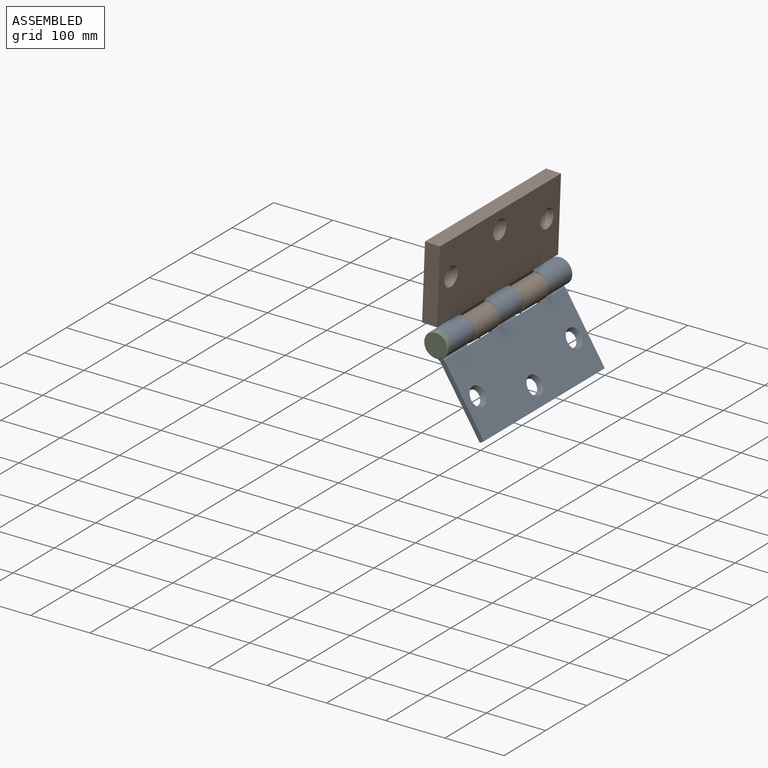
[diagram: assembled view]
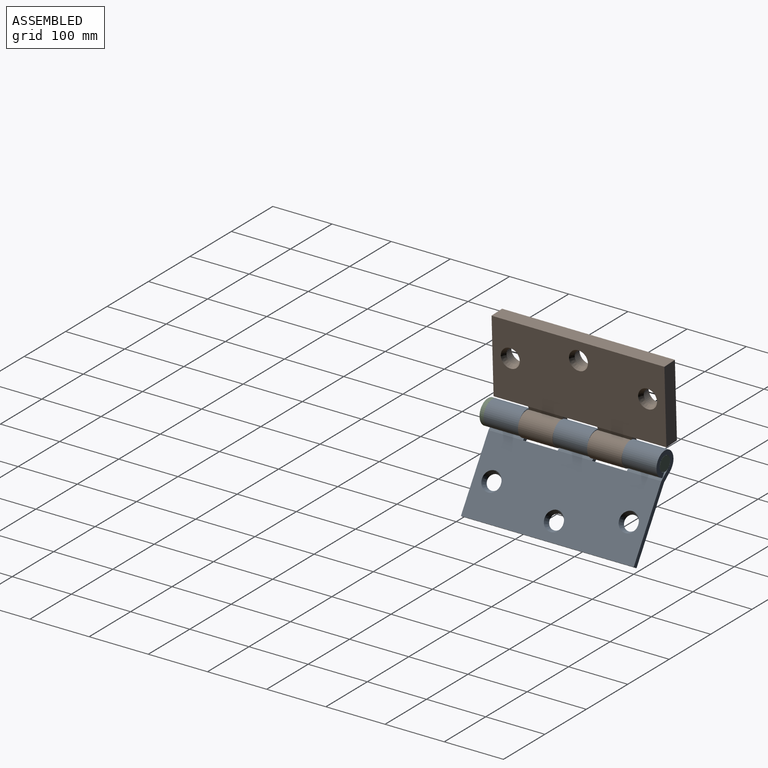
[diagram: assembled view, second angle]
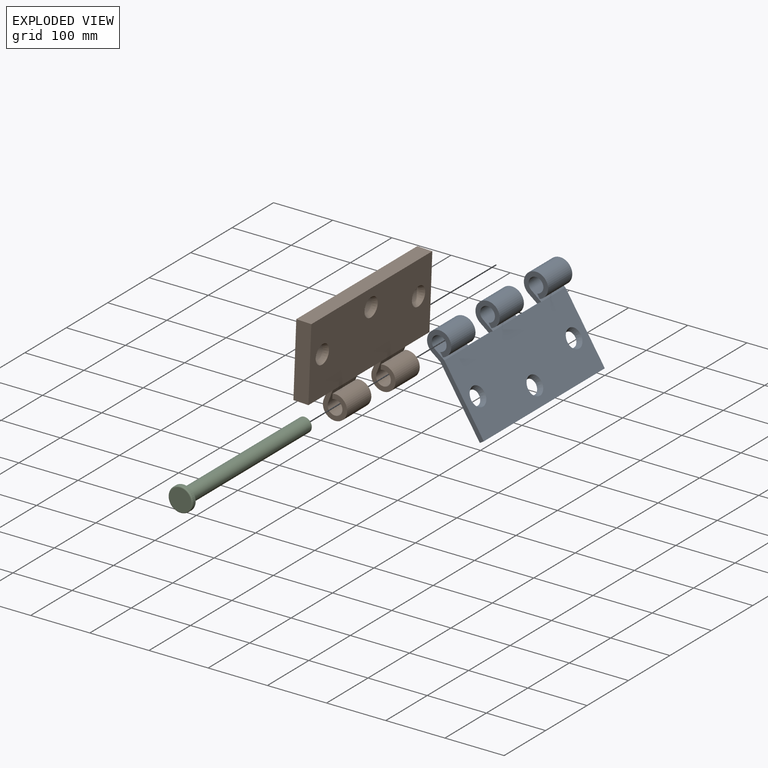
[diagram: exploded view]
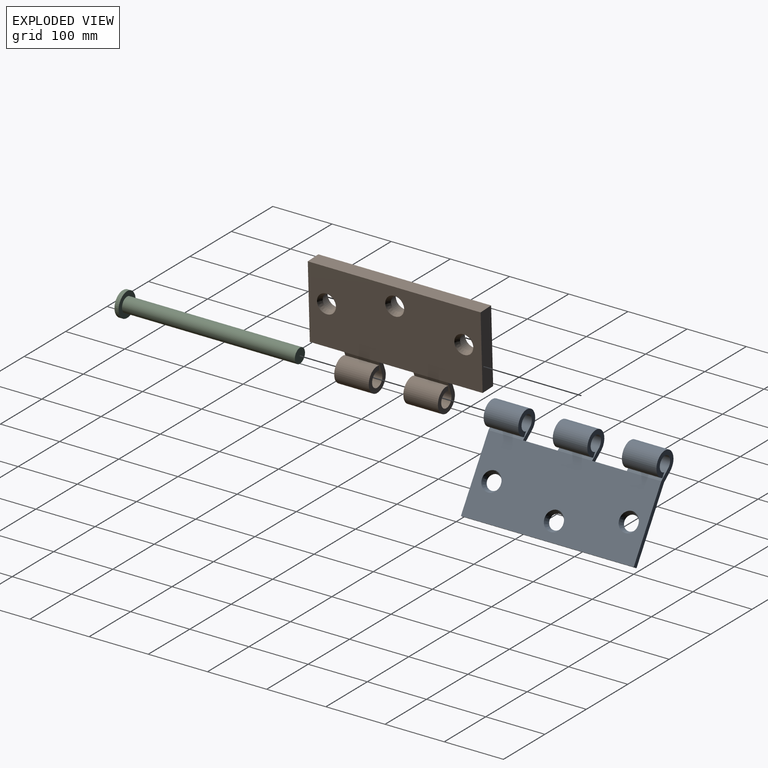
[diagram: exploded view, second angle]
ASSEMBLY  parts=3 mates=2
PART A: 29 faces, bbox 170x292x41 mm
  f0: cylinder r=12.5mm len=58.4mm, axis (0,1,0), area 3975.6mm2, adj f2,f8,f24,f28
  f1: cylinder r=12.5mm len=58.4mm, axis (0,1,0), area 3975.6mm2, adj f3,f9,f18,f25
  f2: plane 58.4x20.54mm, normal (-0.32,0,0.95), area 1264.7mm2, adj f0,f12,f24,f28
  f3: plane 58.4x20.54mm, normal (-0.32,0,0.95), area 1264.7mm2, adj f1,f12,f18,f25
  f4: plane 58.4x17.59mm, normal (0.34,0,-0.94), area 1091mm2, adj f6,f14,f24,f28
  f5: plane 58.4x17.59mm, normal (0.34,0,-0.94), area 1091mm2, adj f7,f14,f18,f25
  f6: cylinder r=20.5mm len=58.4mm, axis (0,1,0), area 6348.4mm2, adj f4,f8,f24,f28
  f7: cylinder r=20.5mm len=58.4mm, axis (0,1,0), area 6348.4mm2, adj f5,f9,f18,f25
  f8: plane 58.4x8.42mm, normal (0,0,-1), area 492mm2, adj f0,f6,f24,f28
  f9: plane 58.4x8.42mm, normal (0,0,-1), area 492mm2, adj f1,f7,f18,f25
  f10: cylinder r=12.5mm len=58.4mm, axis (0,1,0), area 3975.6mm2, adj f11,f17,f19,f27
  f11: plane 58.4x20.54mm, normal (-0.32,0,0.95), area 1264.7mm2, adj f10,f12,f19,f27
  f12: plane 292x125mm, normal (0,0,1), area 34087.3mm2, adj f2,f3,f11,f13,f18,f19,f20,f21
  f13: plane 292x8mm, normal (1,0,0), area 2336mm2, adj f12,f14,f18,f19
  f14: plane 292x125mm, normal (0,0,-1), area 35142.8mm2, adj f4,f5,f13,f15,f18,f19,f20,f21
  f15: plane 58.4x17.59mm, normal (0.34,0,-0.94), area 1091mm2, adj f14,f16,f19,f27
  f16: cylinder r=20.5mm len=58.4mm, axis (0,1,0), area 6348.4mm2, adj f15,f17,f19,f27
  f17: plane 58.4x8.42mm, normal (0,0,-1), area 492mm2, adj f10,f16,f19,f27
  f18: plane 170x41mm, normal (0,-1,0), area 1864mm2, adj f1,f3,f5,f7,f9,f12,f13,f14
  f19: plane 170x41mm, normal (0,1,0), area 1864mm2, adj f10,f11,f12,f13,f14,f15,f16,f17
  f20: cone r=12mm half-angle=26.6deg, axis (0,0,1), area 786.8mm2, adj f12,f14
  f21: cone r=12mm half-angle=26.6deg, axis (0,0,1), area 786.8mm2, adj f12,f14
  f22: cone r=12mm half-angle=26.6deg, axis (0,0,1), area 786.8mm2, adj f12,f14
  f23: plane 58.4x8mm, normal (-1,0,0), area 467.2mm2, adj f12,f14,f24,f25
  f24: plane 45x41mm, normal (0,-1,0), area 864mm2, adj f0,f2,f4,f6,f8,f23
  f25: plane 45x41mm, normal (0,1,0), area 864mm2, adj f1,f3,f5,f7,f9,f23
  f26: plane 58.4x8mm, normal (-1,0,0), area 467.2mm2, adj f12,f14,f27,f28
  f27: plane 45x41mm, normal (0,-1,0), area 864mm2, adj f10,f11,f15,f16,f17,f26
  f28: plane 45x41mm, normal (0,1,0), area 864mm2, adj f0,f2,f4,f6,f8,f26
PART B: 29 faces, bbox 170x292x50.9 mm
  f0: plane 32x32mm, normal (0,0,-1), area 351.9mm2, adj f18,f26
  f1: plane 32x32mm, normal (0,0,-1), area 351.9mm2, adj f19,f27
  f2: cylinder r=12.5mm len=58.4mm, axis (0,1,0), area 3975.6mm2, adj f4,f10,f21,f24
  f3: cylinder r=12.5mm len=58.4mm, axis (0,1,0), area 3975.6mm2, adj f5,f11,f20,f22
  f4: plane 58.4x20.54mm, normal (0.32,0,0.95), area 1264.7mm2, adj f2,f14,f21,f24
  f5: plane 58.4x20.54mm, normal (0.32,0,0.95), area 1264.7mm2, adj f3,f14,f20,f22
  f6: plane 58.4x17.59mm, normal (-0.34,0,-0.94), area 1091mm2, adj f8,f21,f23,f24
  f7: plane 58.4x17.59mm, normal (-0.34,0,-0.94), area 1091mm2, adj f9,f20,f22,f23
  f8: cylinder r=20.5mm len=58.4mm, axis (0,1,0), area 6348.4mm2, adj f6,f10,f21,f24
  f9: cylinder r=20.5mm len=58.4mm, axis (0,1,0), area 6348.4mm2, adj f7,f11,f20,f22
  f10: plane 58.4x8.42mm, normal (0,0,-1), area 492mm2, adj f2,f8,f21,f24
  f11: plane 58.4x8.42mm, normal (0,0,-1), area 492mm2, adj f3,f9,f20,f22
  f12: plane 125x25.4mm, normal (0,-1,0), area 3175mm2, adj f14,f15,f23,f28
  f13: plane 125x25.4mm, normal (0,1,0), area 3175mm2, adj f14,f15,f23,f28
  f14: plane 292x125mm, normal (0,0,1), area 34087.3mm2, adj f4,f5,f12,f13,f15,f17,f18,f19
  f15: plane 292x25.4mm, normal (-1,0,0), area 7416.8mm2, adj f12,f13,f14,f28
  f16: plane 32x32mm, normal (0,0,-1), area 351.9mm2, adj f17,f25
  f17: cone r=12mm half-angle=26.6deg, axis (0,0,1), area 786.8mm2, adj f14,f16
  f18: cone r=12mm half-angle=26.6deg, axis (0,0,1), area 786.8mm2, adj f0,f14
  f19: cone r=12mm half-angle=26.6deg, axis (0,0,1), area 786.8mm2, adj f1,f14
  f20: plane 45x41mm, normal (0,-1,0), area 864mm2, adj f3,f5,f7,f9,f11,f23
  f21: plane 45x41mm, normal (0,-1,0), area 864mm2, adj f2,f4,f6,f8,f10,f23
  f22: plane 45x41mm, normal (0,1,0), area 864mm2, adj f3,f5,f7,f9,f11,f23
  f23: plane 292x25.4mm, normal (1,0,0), area 6482.4mm2, adj f6,f7,f12,f13,f14,f20,f21,f22
  f24: plane 45x41mm, normal (0,1,0), area 864mm2, adj f2,f4,f6,f8,f10,f23
  f25: cylinder r=16mm len=32mm, axis (0,0,1), area 1749.2mm2, adj f16,f28
  f26: cylinder r=16mm len=32mm, axis (0,0,1), area 1749.2mm2, adj f0,f28
  f27: cylinder r=16mm len=32mm, axis (0,0,1), area 1749.2mm2, adj f1,f28
  f28: plane 292x125mm, normal (0,0,-1), area 34087.3mm2, adj f12,f13,f15,f23,f25,f26,f27
PART C: 6 faces, bbox 44.4x300x44.4 mm
  f0: cylinder r=12.25mm len=292mm, axis (0,-1,0), area 22475mm2, adj f1,f4
  f1: plane 24.5x24.5mm, normal (0,1,0), area 471.4mm2, adj f0
  f2: cylinder r=20.5mm len=41mm, axis (0,1,0), area 772.8mm2, adj f4,f5
  f3: plane 37x37mm, normal (0,-1,0), area 1075.2mm2, adj f5
  f4: plane 41x41mm, normal (0,1,0), area 848.8mm2, adj f0,f2
  f5: torus R=18.5mm, axis (0,-1,0), area 390.3mm2, adj f2,f3
PLACE A rot(axis=(0,1,0),57.8deg) t=(7.21,0,23.06)mm
PLACE B rot(axis=(0,1,0),92.2deg) t=(21.04,0,28.62)mm
PLACE C at identity fixed
MATE revolute A.f0 <-> B.f20  axis (0,1,0) through (24.5,-233.6,5)mm
MATE revolute A.f0 <-> C.f0  axis (0,1,0) through (24.5,-292,5)mm
